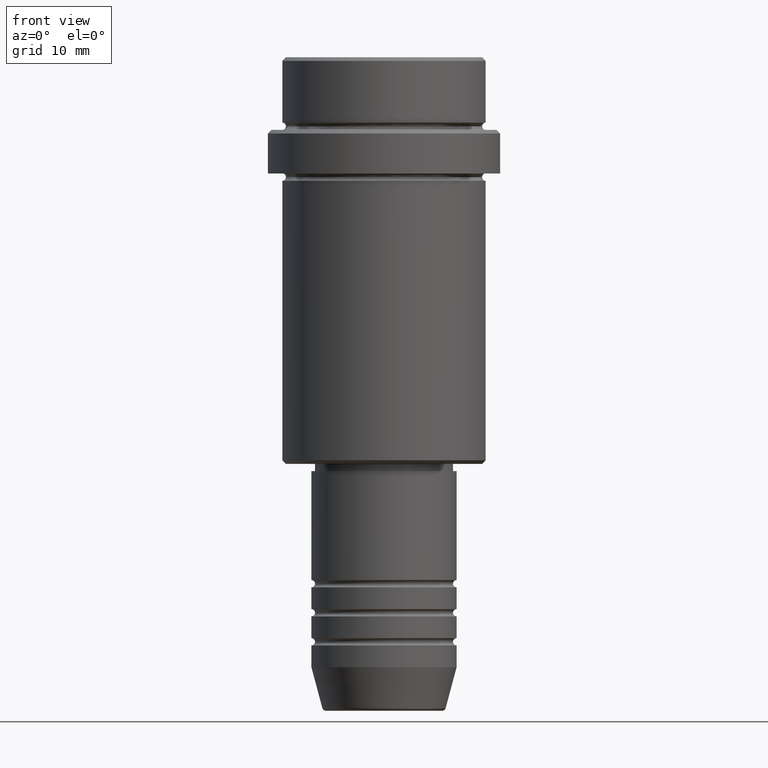
[diagram: clean part render]
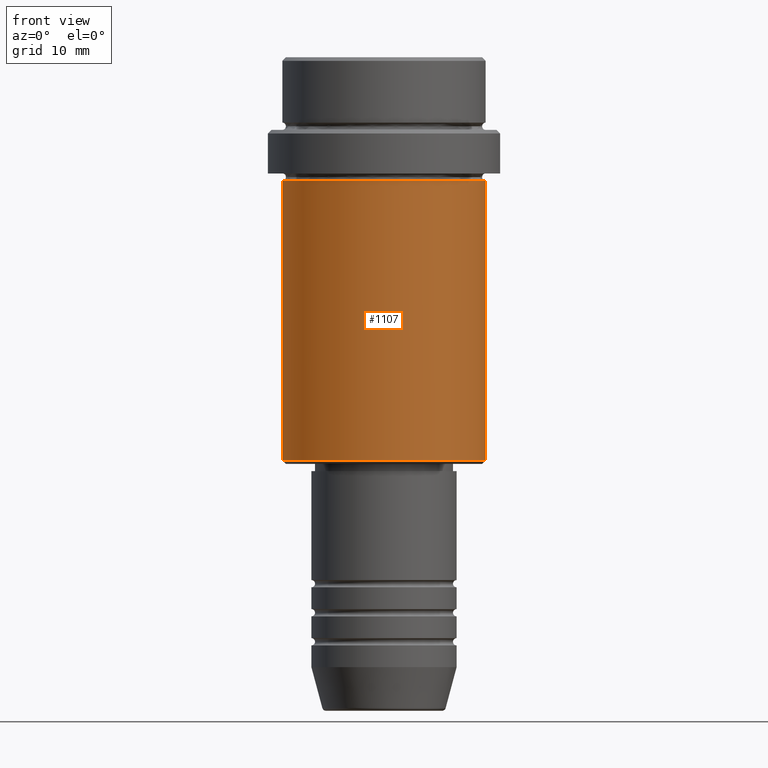
[diagram: same view with one face highlighted and labeled with its STEP entity id]
A machine part, front view. The second image highlights one B-rep face of the part: STEP entity #1107.
In plain terms, the highlighted cylindrical surface (partial cylindrical patch) has radius 14 mm, axis along (-0, -0, 1).
Its self-contained STEP definition (entity closure, byte-faithful):
#28 = DIRECTION ( 'NONE',  ( -0.000000000000000000, -0.000000000000000000, 1.000000000000000000 ) ) ;
#51 = LINE ( 'NONE', #826, #923 ) ;
#61 = AXIS2_PLACEMENT_3D ( 'NONE', #887, #257, #705 ) ;
#86 = EDGE_CURVE ( 'NONE', #152, #742, #236, .T. ) ;
#106 = CYLINDRICAL_SURFACE ( 'NONE', #61, 13.99999999999999822 ) ;
#152 = VERTEX_POINT ( 'NONE', #1119 ) ;
#187 = CIRCLE ( 'NONE', #746, 13.99999999999999467 ) ;
#210 = FACE_OUTER_BOUND ( 'NONE', #1340, .T. ) ;
#219 = ORIENTED_EDGE ( 'NONE', *, *, #1033, .T. ) ;
#230 = CARTESIAN_POINT ( 'NONE',  ( -13.99999999999999822, 1.714505518806294441E-15, 0.000000000000000000 ) ) ;
#236 = CIRCLE ( 'NONE', #1188, 13.99999999999999822 ) ;
#257 = DIRECTION ( 'NONE',  ( -0.000000000000000000, -0.000000000000000000, 1.000000000000000000 ) ) ;
#345 = ORIENTED_EDGE ( 'NONE', *, *, #86, .T. ) ;
#396 = DIRECTION ( 'NONE',  ( -1.000000000000000000, 0.000000000000000000, 0.000000000000000000 ) ) ;
#530 = EDGE_CURVE ( 'NONE', #1121, #634, #187, .T. ) ;
#602 = CARTESIAN_POINT ( 'NONE',  ( 13.99999999999999467, 0.000000000000000000, -17.00000000000000355 ) ) ;
#634 = VERTEX_POINT ( 'NONE', #602 ) ;
#677 = DIRECTION ( 'NONE',  ( 1.000000000000000000, 0.000000000000000000, 0.000000000000000000 ) ) ;
#679 = DIRECTION ( 'NONE',  ( -0.000000000000000000, -0.000000000000000000, 1.000000000000000000 ) ) ;
#705 = DIRECTION ( 'NONE',  ( 1.000000000000000000, 0.000000000000000000, 0.000000000000000000 ) ) ;
#730 = CARTESIAN_POINT ( 'NONE',  ( -13.99999999999999467, 1.714505518806294244E-15, -17.00000000000000355 ) ) ;
#742 = VERTEX_POINT ( 'NONE', #959 ) ;
#746 = AXIS2_PLACEMENT_3D ( 'NONE', #1398, #1021, #677 ) ;
#765 = ORIENTED_EDGE ( 'NONE', *, *, #530, .F. ) ;
#826 = CARTESIAN_POINT ( 'NONE',  ( 13.99999999999999822, 0.000000000000000000, 0.000000000000000000 ) ) ;
#887 = CARTESIAN_POINT ( 'NONE',  ( 0.000000000000000000, 0.000000000000000000, 0.000000000000000000 ) ) ;
#923 = VECTOR ( 'NONE', #679, 1000.000000000000000 ) ;
#959 = CARTESIAN_POINT ( 'NONE',  ( 13.99999999999999822, 0.000000000000000000, -55.49999999999999289 ) ) ;
#960 = EDGE_CURVE ( 'NONE', #152, #1121, #1134, .T. ) ;
#1021 = DIRECTION ( 'NONE',  ( -0.000000000000000000, -0.000000000000000000, 1.000000000000000000 ) ) ;
#1033 = EDGE_CURVE ( 'NONE', #742, #634, #51, .T. ) ;
#1085 = VECTOR ( 'NONE', #28, 1000.000000000000000 ) ;
#1107 = ADVANCED_FACE ( 'NONE', ( #210 ), #106, .T. ) ;
#1119 = CARTESIAN_POINT ( 'NONE',  ( -13.99999999999999822, 1.714505518806294441E-15, -55.49999999999999289 ) ) ;
#1121 = VERTEX_POINT ( 'NONE', #730 ) ;
#1134 = LINE ( 'NONE', #230, #1085 ) ;
#1166 = CARTESIAN_POINT ( 'NONE',  ( 0.000000000000000000, 0.000000000000000000, -55.49999999999999289 ) ) ;
#1188 = AXIS2_PLACEMENT_3D ( 'NONE', #1166, #1383, #396 ) ;
#1340 = EDGE_LOOP ( 'NONE', ( #1382, #345, #219, #765 ) ) ;
#1382 = ORIENTED_EDGE ( 'NONE', *, *, #960, .F. ) ;
#1383 = DIRECTION ( 'NONE',  ( -0.000000000000000000, -0.000000000000000000, 1.000000000000000000 ) ) ;
#1398 = CARTESIAN_POINT ( 'NONE',  ( 0.000000000000000000, 0.000000000000000000, -17.00000000000000355 ) ) ;